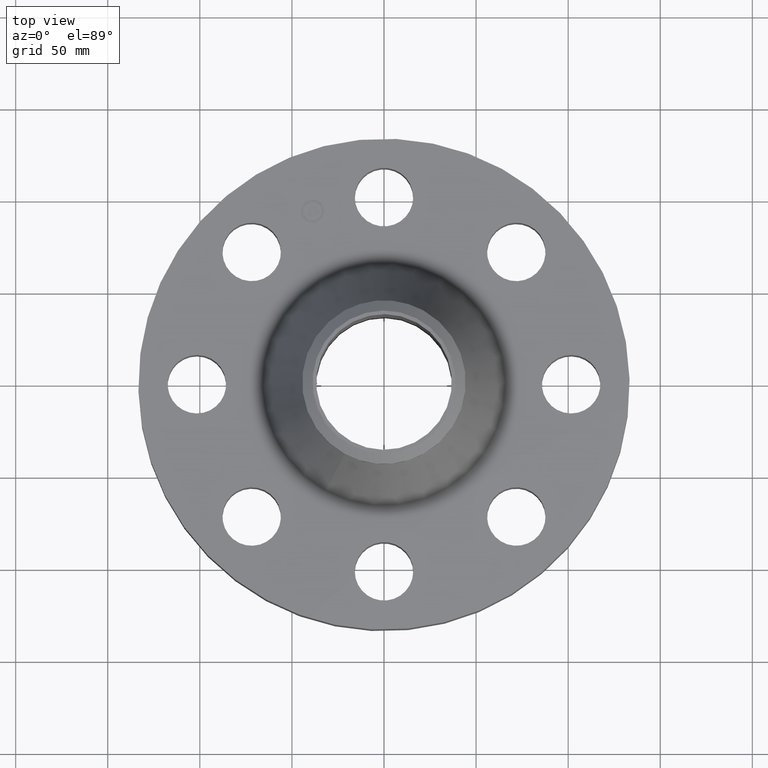
[diagram: clean part render]
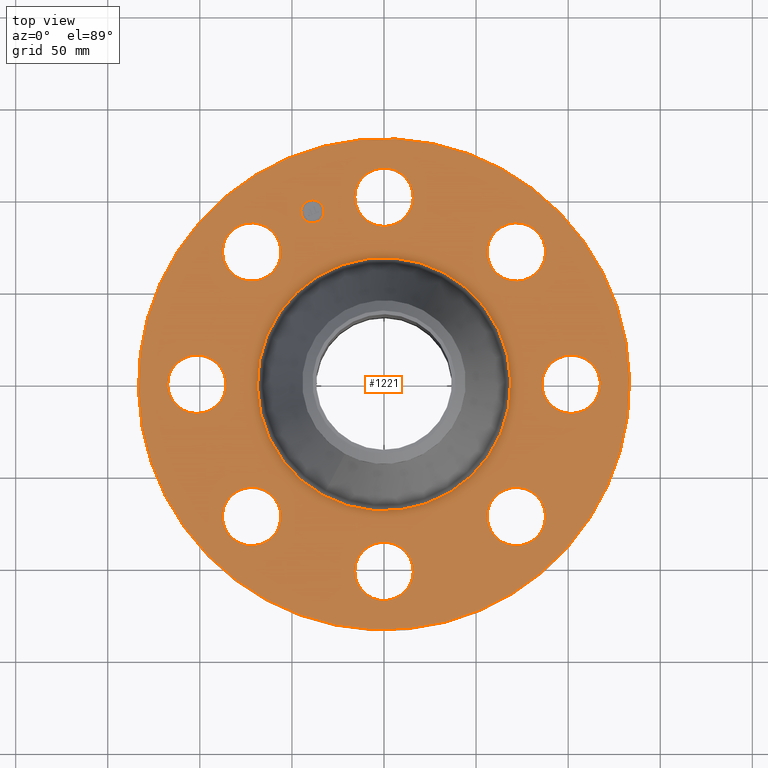
[diagram: same view with one face highlighted and labeled with its STEP entity id]
A machine part, top view. The second image highlights one B-rep face of the part: STEP entity #1221.
In plain terms, the highlighted planar face has unit normal (0, 0, -1).
Its self-contained STEP definition (entity closure, byte-faithful):
#65=AXIS2_PLACEMENT_3D('Circle Axis2P3D',#63,#64,$) ;
#82=AXIS2_PLACEMENT_3D('Circle Axis2P3D',#80,#81,$) ;
#115=AXIS2_PLACEMENT_3D('Circle Axis2P3D',#113,#114,$) ;
#139=AXIS2_PLACEMENT_3D('Circle Axis2P3D',#137,#138,$) ;
#156=AXIS2_PLACEMENT_3D('Circle Axis2P3D',#154,#155,$) ;
#191=AXIS2_PLACEMENT_3D('Circle Axis2P3D',#189,#190,$) ;
#646=AXIS2_PLACEMENT_3D('Circle Axis2P3D',#644,#645,$) ;
#658=AXIS2_PLACEMENT_3D('Circle Axis2P3D',#656,#657,$) ;
#689=AXIS2_PLACEMENT_3D('Circle Axis2P3D',#687,#688,$) ;
#701=AXIS2_PLACEMENT_3D('Circle Axis2P3D',#699,#700,$) ;
#732=AXIS2_PLACEMENT_3D('Circle Axis2P3D',#730,#731,$) ;
#744=AXIS2_PLACEMENT_3D('Circle Axis2P3D',#742,#743,$) ;
#775=AXIS2_PLACEMENT_3D('Circle Axis2P3D',#773,#774,$) ;
#787=AXIS2_PLACEMENT_3D('Circle Axis2P3D',#785,#786,$) ;
#818=AXIS2_PLACEMENT_3D('Circle Axis2P3D',#816,#817,$) ;
#830=AXIS2_PLACEMENT_3D('Circle Axis2P3D',#828,#829,$) ;
#861=AXIS2_PLACEMENT_3D('Circle Axis2P3D',#859,#860,$) ;
#873=AXIS2_PLACEMENT_3D('Circle Axis2P3D',#871,#872,$) ;
#904=AXIS2_PLACEMENT_3D('Circle Axis2P3D',#902,#903,$) ;
#916=AXIS2_PLACEMENT_3D('Circle Axis2P3D',#914,#915,$) ;
#1161=AXIS2_PLACEMENT_3D('Plane Axis2P3D',#1158,#1159,#1160) ;
#1205=AXIS2_PLACEMENT_3D('Circle Axis2P3D',#1203,#1204,$) ;
#1214=AXIS2_PLACEMENT_3D('Circle Axis2P3D',#1212,#1213,$) ;
#46=CARTESIAN_POINT('Vertex',(-0.548489101184,4.29964096164,1.88000000001)) ;
#60=CARTESIAN_POINT('Vertex',(0.548489101184,3.70035903839,1.88000000001)) ;
#63=CARTESIAN_POINT('Axis2P3D Location',(0.,4.00000000002,1.88000000001)) ;
#80=CARTESIAN_POINT('Axis2P3D Location',(0.,4.00000000002,1.88000000001)) ;
#110=CARTESIAN_POINT('Vertex',(-2.51698407768,-4.60730844994,1.88000000001)) ;
#113=CARTESIAN_POINT('Axis2P3D Location',(0.,0.,1.88000000001)) ;
#117=CARTESIAN_POINT('Vertex',(2.51698407768,4.60730844994,1.88000000001)) ;
#137=CARTESIAN_POINT('Axis2P3D Location',(0.,0.,1.88000000001)) ;
#154=CARTESIAN_POINT('Axis2P3D Location',(0.,0.,1.88000000001)) ;
#158=CARTESIAN_POINT('Vertex',(1.29836509767,2.37664136958,1.88000000001)) ;
#160=CARTESIAN_POINT('Vertex',(-1.29836509767,-2.37664136958,1.88000000001)) ;
#189=CARTESIAN_POINT('Axis2P3D Location',(0.,0.,1.88000000001)) ;
#634=CARTESIAN_POINT('Vertex',(-2.65246491779,-3.4281456435,1.88000000001)) ;
#641=CARTESIAN_POINT('Vertex',(-3.00438933172,-2.22870860601,1.88000000001)) ;
#644=CARTESIAN_POINT('Axis2P3D Location',(-2.82842712476,-2.82842712476,1.88000000001)) ;
#656=CARTESIAN_POINT('Axis2P3D Location',(-2.82842712476,-2.82842712476,1.88000000001)) ;
#677=CARTESIAN_POINT('Vertex',(4.29964096164,0.548489101184,1.88000000001)) ;
#684=CARTESIAN_POINT('Vertex',(3.70035903839,-0.548489101184,1.88000000001)) ;
#687=CARTESIAN_POINT('Axis2P3D Location',(4.00000000002,2.4492935983E-016,1.88000000001)) ;
#699=CARTESIAN_POINT('Axis2P3D Location',(4.00000000002,2.4492935983E-016,1.88000000001)) ;
#720=CARTESIAN_POINT('Vertex',(-4.29964096164,-0.548489101184,1.88000000001)) ;
#727=CARTESIAN_POINT('Vertex',(-3.70035903839,0.548489101184,1.88000000001)) ;
#730=CARTESIAN_POINT('Axis2P3D Location',(-4.00000000002,-1.75305610389E-016,1.88000000001)) ;
#742=CARTESIAN_POINT('Axis2P3D Location',(-4.00000000002,-1.75305610389E-016,1.88000000001)) ;
#763=CARTESIAN_POINT('Vertex',(3.4281456435,-2.65246491779,1.88000000001)) ;
#770=CARTESIAN_POINT('Vertex',(2.22870860601,-3.00438933172,1.88000000001)) ;
#773=CARTESIAN_POINT('Axis2P3D Location',(2.82842712476,-2.82842712476,1.88000000001)) ;
#785=CARTESIAN_POINT('Axis2P3D Location',(2.82842712476,-2.82842712476,1.88000000001)) ;
#806=CARTESIAN_POINT('Vertex',(-3.4281456435,2.65246491779,1.88000000001)) ;
#813=CARTESIAN_POINT('Vertex',(-2.22870860601,3.00438933172,1.88000000001)) ;
#816=CARTESIAN_POINT('Axis2P3D Location',(-2.82842712476,2.82842712476,1.88000000001)) ;
#828=CARTESIAN_POINT('Axis2P3D Location',(-2.82842712476,2.82842712476,1.88000000001)) ;
#849=CARTESIAN_POINT('Vertex',(0.548489101184,-4.29964096164,1.88000000001)) ;
#856=CARTESIAN_POINT('Vertex',(-0.548489101184,-3.70035903839,1.88000000001)) ;
#859=CARTESIAN_POINT('Axis2P3D Location',(4.89858719661E-016,-4.00000000002,1.88000000001)) ;
#871=CARTESIAN_POINT('Axis2P3D Location',(4.89858719661E-016,-4.00000000002,1.88000000001)) ;
#892=CARTESIAN_POINT('Vertex',(2.65246491779,3.4281456435,1.88000000001)) ;
#899=CARTESIAN_POINT('Vertex',(3.00438933172,2.22870860601,1.88000000001)) ;
#902=CARTESIAN_POINT('Axis2P3D Location',(2.82842712476,2.82842712476,1.88000000001)) ;
#914=CARTESIAN_POINT('Axis2P3D Location',(2.82842712476,2.82842712476,1.88000000001)) ;
#1158=CARTESIAN_POINT('Axis2P3D Location',(0.,5.25000000002,1.88000000001)) ;
#1203=CARTESIAN_POINT('Axis2P3D Location',(-1.53073372947,3.69551813006,1.88000000001)) ;
#1207=CARTESIAN_POINT('Vertex',(-1.75939391376,3.60080398055,1.88000000001)) ;
#1209=CARTESIAN_POINT('Vertex',(-1.30207354517,3.79023227957,1.88000000001)) ;
#1212=CARTESIAN_POINT('Axis2P3D Location',(-1.53073372947,3.69551813006,1.88000000001)) ;
#64=DIRECTION('Axis2P3D Direction',(0.,-0.,-0.0393700787402)) ;
#81=DIRECTION('Axis2P3D Direction',(0.,-0.,-0.0393700787402)) ;
#114=DIRECTION('Axis2P3D Direction',(0.,0.,-0.0393700787402)) ;
#138=DIRECTION('Axis2P3D Direction',(0.,0.,-0.0393700787402)) ;
#155=DIRECTION('Axis2P3D Direction',(0.,0.,-0.0393700787402)) ;
#190=DIRECTION('Axis2P3D Direction',(0.,0.,-0.0393700787402)) ;
#645=DIRECTION('Axis2P3D Direction',(0.,0.,-0.0393700787402)) ;
#657=DIRECTION('Axis2P3D Direction',(0.,0.,-0.0393700787402)) ;
#688=DIRECTION('Axis2P3D Direction',(0.,-0.,-0.0393700787402)) ;
#700=DIRECTION('Axis2P3D Direction',(0.,-0.,-0.0393700787402)) ;
#731=DIRECTION('Axis2P3D Direction',(0.,0.,-0.0393700787402)) ;
#743=DIRECTION('Axis2P3D Direction',(0.,0.,-0.0393700787402)) ;
#774=DIRECTION('Axis2P3D Direction',(-0.,0.,-0.0393700787402)) ;
#786=DIRECTION('Axis2P3D Direction',(-0.,0.,-0.0393700787402)) ;
#817=DIRECTION('Axis2P3D Direction',(0.,0.,-0.0393700787402)) ;
#829=DIRECTION('Axis2P3D Direction',(0.,0.,-0.0393700787402)) ;
#860=DIRECTION('Axis2P3D Direction',(-0.,0.,-0.0393700787402)) ;
#872=DIRECTION('Axis2P3D Direction',(-0.,0.,-0.0393700787402)) ;
#903=DIRECTION('Axis2P3D Direction',(0.,-0.,-0.0393700787402)) ;
#915=DIRECTION('Axis2P3D Direction',(0.,-0.,-0.0393700787402)) ;
#1159=DIRECTION('Axis2P3D Direction',(0.,0.,-0.0393700787402)) ;
#1160=DIRECTION('Axis2P3D XDirection',(0.0393700787402,0.,0.)) ;
#1204=DIRECTION('Axis2P3D Direction',(0.,0.,-0.0393700787402)) ;
#1213=DIRECTION('Axis2P3D Direction',(0.,0.,-0.0393700787402)) ;
#1164=ORIENTED_EDGE('',*,*,#141,.F.) ;
#1165=ORIENTED_EDGE('',*,*,#119,.F.) ;
#1168=ORIENTED_EDGE('',*,*,#67,.T.) ;
#1169=ORIENTED_EDGE('',*,*,#84,.T.) ;
#1172=ORIENTED_EDGE('',*,*,#193,.T.) ;
#1173=ORIENTED_EDGE('',*,*,#162,.T.) ;
#1176=ORIENTED_EDGE('',*,*,#918,.T.) ;
#1177=ORIENTED_EDGE('',*,*,#906,.T.) ;
#1180=ORIENTED_EDGE('',*,*,#703,.T.) ;
#1181=ORIENTED_EDGE('',*,*,#691,.T.) ;
#1184=ORIENTED_EDGE('',*,*,#789,.T.) ;
#1185=ORIENTED_EDGE('',*,*,#777,.T.) ;
#1188=ORIENTED_EDGE('',*,*,#875,.T.) ;
#1189=ORIENTED_EDGE('',*,*,#863,.T.) ;
#1192=ORIENTED_EDGE('',*,*,#660,.T.) ;
#1193=ORIENTED_EDGE('',*,*,#648,.T.) ;
#1196=ORIENTED_EDGE('',*,*,#746,.T.) ;
#1197=ORIENTED_EDGE('',*,*,#734,.T.) ;
#1200=ORIENTED_EDGE('',*,*,#832,.T.) ;
#1201=ORIENTED_EDGE('',*,*,#820,.T.) ;
#1218=ORIENTED_EDGE('',*,*,#1211,.T.) ;
#1219=ORIENTED_EDGE('',*,*,#1216,.T.) ;
#1170=FACE_BOUND('',#1167,.T.) ;
#1174=FACE_BOUND('',#1171,.T.) ;
#1178=FACE_BOUND('',#1175,.T.) ;
#1182=FACE_BOUND('',#1179,.T.) ;
#1186=FACE_BOUND('',#1183,.T.) ;
#1190=FACE_BOUND('',#1187,.T.) ;
#1194=FACE_BOUND('',#1191,.T.) ;
#1198=FACE_BOUND('',#1195,.T.) ;
#1202=FACE_BOUND('',#1199,.T.) ;
#1220=FACE_BOUND('',#1217,.T.) ;
#1221=ADVANCED_FACE('PartBody',(#1166,#1170,#1174,#1178,#1182,#1186,#1190,#1194,#1198,#1202,#1220),#1162,.F.) ;
#66=CIRCLE('generated circle',#65,0.625000000003) ;
#83=CIRCLE('generated circle',#82,0.625000000003) ;
#116=CIRCLE('generated circle',#115,5.25000000002) ;
#140=CIRCLE('generated circle',#139,5.25000000002) ;
#157=CIRCLE('generated circle',#156,2.70816840807) ;
#192=CIRCLE('generated circle',#191,2.70816840807) ;
#647=CIRCLE('generated circle',#646,0.625000000002) ;
#659=CIRCLE('generated circle',#658,0.625000000002) ;
#690=CIRCLE('generated circle',#689,0.625000000003) ;
#702=CIRCLE('generated circle',#701,0.625000000003) ;
#733=CIRCLE('generated circle',#732,0.625000000003) ;
#745=CIRCLE('generated circle',#744,0.625000000003) ;
#776=CIRCLE('generated circle',#775,0.625000000002) ;
#788=CIRCLE('generated circle',#787,0.625000000002) ;
#819=CIRCLE('generated circle',#818,0.625000000003) ;
#831=CIRCLE('generated circle',#830,0.625000000003) ;
#862=CIRCLE('generated circle',#861,0.625000000003) ;
#874=CIRCLE('generated circle',#873,0.625000000003) ;
#905=CIRCLE('generated circle',#904,0.625000000002) ;
#917=CIRCLE('generated circle',#916,0.625000000002) ;
#1206=CIRCLE('generated circle',#1205,0.247500000001) ;
#1215=CIRCLE('generated circle',#1214,0.247500000001) ;
#67=EDGE_CURVE('',#47,#61,#66,.T.) ;
#84=EDGE_CURVE('',#61,#47,#83,.T.) ;
#119=EDGE_CURVE('',#111,#118,#116,.T.) ;
#141=EDGE_CURVE('',#118,#111,#140,.T.) ;
#162=EDGE_CURVE('',#159,#161,#157,.T.) ;
#193=EDGE_CURVE('',#161,#159,#192,.T.) ;
#648=EDGE_CURVE('',#635,#642,#647,.T.) ;
#660=EDGE_CURVE('',#642,#635,#659,.T.) ;
#691=EDGE_CURVE('',#678,#685,#690,.T.) ;
#703=EDGE_CURVE('',#685,#678,#702,.T.) ;
#734=EDGE_CURVE('',#721,#728,#733,.T.) ;
#746=EDGE_CURVE('',#728,#721,#745,.T.) ;
#777=EDGE_CURVE('',#764,#771,#776,.T.) ;
#789=EDGE_CURVE('',#771,#764,#788,.T.) ;
#820=EDGE_CURVE('',#807,#814,#819,.T.) ;
#832=EDGE_CURVE('',#814,#807,#831,.T.) ;
#863=EDGE_CURVE('',#850,#857,#862,.T.) ;
#875=EDGE_CURVE('',#857,#850,#874,.T.) ;
#906=EDGE_CURVE('',#893,#900,#905,.T.) ;
#918=EDGE_CURVE('',#900,#893,#917,.T.) ;
#1211=EDGE_CURVE('',#1208,#1210,#1206,.T.) ;
#1216=EDGE_CURVE('',#1210,#1208,#1215,.T.) ;
#1163=EDGE_LOOP('',(#1164,#1165)) ;
#1167=EDGE_LOOP('',(#1168,#1169)) ;
#1171=EDGE_LOOP('',(#1172,#1173)) ;
#1175=EDGE_LOOP('',(#1176,#1177)) ;
#1179=EDGE_LOOP('',(#1180,#1181)) ;
#1183=EDGE_LOOP('',(#1184,#1185)) ;
#1187=EDGE_LOOP('',(#1188,#1189)) ;
#1191=EDGE_LOOP('',(#1192,#1193)) ;
#1195=EDGE_LOOP('',(#1196,#1197)) ;
#1199=EDGE_LOOP('',(#1200,#1201)) ;
#1217=EDGE_LOOP('',(#1218,#1219)) ;
#1166=FACE_OUTER_BOUND('',#1163,.T.) ;
#1162=PLANE('',#1161) ;
#47=VERTEX_POINT('',#46) ;
#61=VERTEX_POINT('',#60) ;
#111=VERTEX_POINT('',#110) ;
#118=VERTEX_POINT('',#117) ;
#159=VERTEX_POINT('',#158) ;
#161=VERTEX_POINT('',#160) ;
#635=VERTEX_POINT('',#634) ;
#642=VERTEX_POINT('',#641) ;
#678=VERTEX_POINT('',#677) ;
#685=VERTEX_POINT('',#684) ;
#721=VERTEX_POINT('',#720) ;
#728=VERTEX_POINT('',#727) ;
#764=VERTEX_POINT('',#763) ;
#771=VERTEX_POINT('',#770) ;
#807=VERTEX_POINT('',#806) ;
#814=VERTEX_POINT('',#813) ;
#850=VERTEX_POINT('',#849) ;
#857=VERTEX_POINT('',#856) ;
#893=VERTEX_POINT('',#892) ;
#900=VERTEX_POINT('',#899) ;
#1208=VERTEX_POINT('',#1207) ;
#1210=VERTEX_POINT('',#1209) ;